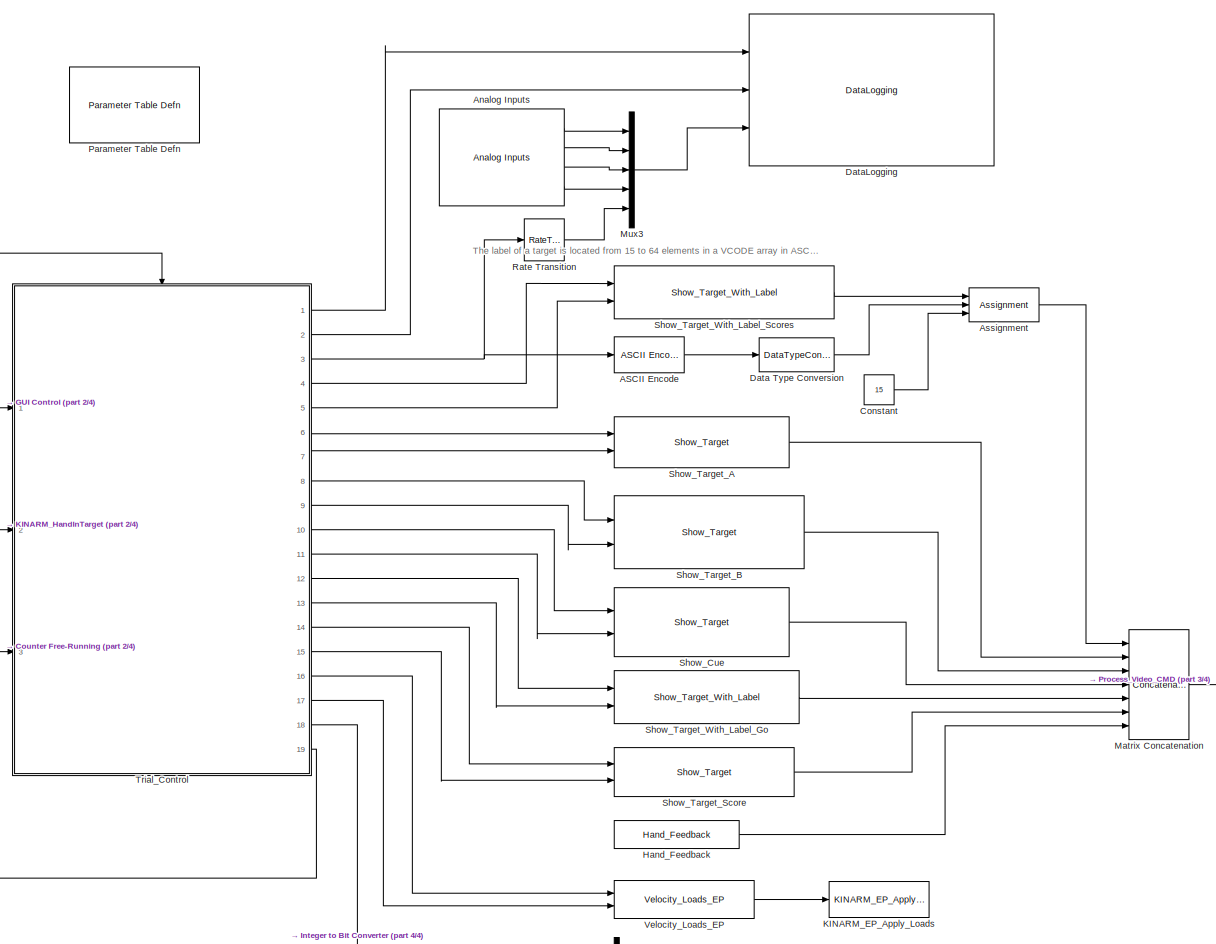
[diagram: root canvas - part 1/4, center side, full height]
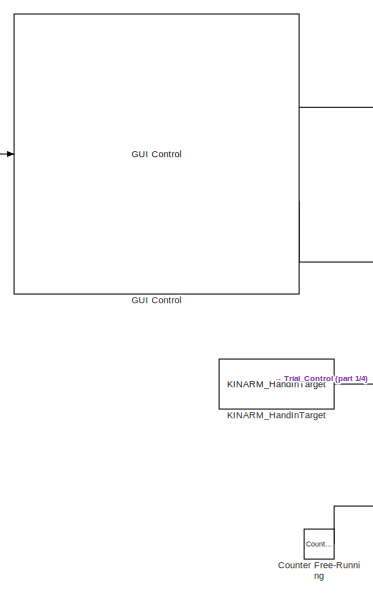
[diagram: root canvas - part 2/4, middle left region]
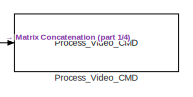
[diagram: root canvas - part 3/4, middle right region]
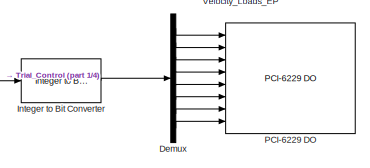
[diagram: root canvas - part 4/4, bottom center region]
MODEL slx_f0d049e67e79
KIND model
CONFIG AbsTol = auto
CONFIG FixedStep = BKIN_STEP_TIME
CONFIG MaxStep = auto
CONFIG MinStep = auto
CONFIG RelTol = 1e-3
CONFIG SampleTimeConstraint = Unconstrained
CONFIG Solver = ode4
CONFIG SolverMode = MultiTasking
CONFIG SolverName = ode4
CONFIG StartFcn =  warndlg('Dexterit-E models cannot run under simulation. Please compile your model and run it from within Dexterit-E.');set_param(bdroot,'SimulationCommand','stop')
CONFIG StartTime = 0.0
CONFIG StopTime = inf
WORKSPACE source: MAT-file member
WORKSPACE col_x = 1
BLOCK [Reference] ASCII Encode   REF=xpcseriallib/ASCII Encode 
  Ports = [1, 1]
  SourceBlock = xpcseriallib/ASCII Encode
  SourceType = ASCII Encode
  format = %d
  maxlength = 48
  nvars = 1
  vartypes = { 'double' }
BLOCK [Reference] Analog Inputs  REF=KINARM_IO/Analog Inputs
  Ports = [0, 4]
  SourceBlock = KINARM_IO/Analog Inputs
  SourceType = Analog Inputs
  channel = [1:4]
  coupling = [0 0 0 0]
  oscantime6071e = 0
  range = [10 10 10 10]
  sampletime = 0.001
  scantime6071e = 1.28e-5
  scantime6229 = 5e-6
  slot = -1
BLOCK [Assignment] Assignment
  DiagnosticForDimensions = Warning
  IndexOptions = Starting index (port)
  Ports = [3, 1]
BLOCK [Constant] Constant
  OutDataTypeStr = uint8
  Value = 15
BLOCK [Reference] Counter Free-Running  REF=simulink/Sources/Counter
Free-Running
  NumBits = 16
  Ports = [0, 1]
  SourceBlock = simulink/Sources/Counter\nFree-Running
  SourceType = Counter Free-Running
  tsamp = 0.001
BLOCK [DataTypeConversion] Data Type Conversion
  OutDataTypeStr = double
  RndMeth = Floor
  SaturateOnIntegerOverflow = off
BLOCK [Reference] DataLogging  REF=General/DataLogging
  Ports = [3]
  SourceBlock = General/DataLogging
  SourceType = DataLogging
  log_analog_inputs = on
  log_event_codes = on
BLOCK [Demux] Demux
  DisplayOption = bar
  Outputs = 8
  Ports = [1, 8]
BLOCK [Reference] GUI Control  REF=General/GUI Control
  Lcols = 4
  Ports = [1, 2]
  SourceBlock = General/GUI Control
  SourceType = GUI Control
  Target_Type = 1
  Vcols = 3
  XYcols = [1 2]
  indices_padding = [0 0 0 0;0 0 0 0]
  show_repeat_trial_flag = off
  target_type_str = Circle
  task_version = 1.0
BLOCK [Reference] Hand_Feedback  REF=KINARM_general/Hand_Feedback
  Ports = [0, 1]
  SourceBlock = KINARM_general/Hand_Feedback
  SourceType = Hand Feedback
  feedback_cntl_src = none
BLOCK [Reference] Integer to Bit Converter  REF=commutil2/Integer to Bit
Converter
  Ports = [1, 1]
  SourceBlock = commutil2/Integer to Bit\nConverter
  SourceType = Integer to Bit Converter
  bitOrder = LSB first
  nbits = 8
  outDtype = Inherit via internal rule
  signedInputValues = Unsigned
BLOCK [Reference] KINARM_EP_Apply_Loads  REF=KINARM_EP_loads/KINARM_EP_Apply_Loads
  Ports = [1]
  SourceBlock = KINARM_EP_loads/KINARM_EP_Apply_Loads
  SourceType = KINARM_EP_Apply_Loads
  down_duration = 1500
  max_force = 60
  up_duration = 1500
BLOCK [Reference] KINARM_HandInTarget  REF=KINARM_general/KINARM_HandInTarget
  Ports = [0, 1]
  SourceBlock = KINARM_general/KINARM_HandInTarget
  SourceType = KINARM_HandInTarget
  attribcol1 = [3 4 5]
  attribcol2 = [4 0 0]
  attribcol3 = [5 0 0]
  attribcol4 = [6 0 0]
  attribcol5 = [0 0 0]
  num_states = 1
  target_type = Ellipse
  use_dominant_hand = on
BLOCK [Concatenate] Matrix Concatenation
  Mode = Multidimensional array
  NumInputs = 7
  Ports = [7, 1]
BLOCK [Mux] Mux3
  DisplayOption = bar
  Inputs = 5
  Ports = [5, 1]
BLOCK [Reference] PCI-6229 DO  REF=xpcnilib/Digital
Output/M Series/PCI-6229 DO
  Ports = [8]
  SourceBlock = xpcnilib/Digital\nOutput/M Series/PCI-6229 DO
  SourceType = donipci6229
  channel = [9,10,11,12,13,14,15,16]
  initValue = [0]
  reset = [1]
  sampletime = 0.00025
  slot = -1
BLOCK [Reference] Parameter Table Defn  REF=General/Parameter Table Defn
  Ports = []
  ShowInLibBrowser = 0
  SourceBlock = General/Parameter Table Defn
  UserDataPersistent = on
BLOCK [Reference] Process_Video_CMD  REF=Video/Process_Video_CMD
  Ports = [1]
  SourceBlock = Video/Process_Video_CMD
  SourceType = Process_Video_CMD
BLOCK [RateTransition] Rate Transition
BLOCK [Reference] Show_Cue  REF=Video/Show_Target
  Ports = [2, 1]
  SourceBlock = Video/Show_Target
  SourceType = Show_Target
  attribcol1 = [8 0 0 3 3 5]
  attribcol2 = [9 0 0 3 3 5]
  attribcol3 = [10 0 0 3 3 5]
  attribcol4 = [11 0 0 3 3 5]
  attribcol5 = [ 0 0 0 0 0 0]
  num_col = 6
  num_states = 4
  opacity = 100
  source = dialog
  stateindices_padding = [0 0 0 0 0;0 0 0 0 0;0 0 0 0 0;0 0 0 0 0;0 0 0 0 0]
  target_display = Both subject and operator displays
  target_type = Ellipse
BLOCK [Reference] Show_Target_A  REF=Video/Show_Target
  Ports = [2, 1]
  SourceBlock = Video/Show_Target
  SourceType = Show_Target
  attribcol1 = [6 0 0 3]
  attribcol2 = [7 0 0 3]
  attribcol3 = [7 0 0 3]
  attribcol4 = [0 0 0 0]
  attribcol5 = [0 0 24 0]
  num_col = 4
  num_states = 2
  opacity = 100
  source = dialog
  stateindices_padding = [0 0 0 0 0 0 0;0 0 0 0 0 0 0;0 0 0 0 0 0 0;0 0 0 0 0 0 0;0 0 0 0 0 0 0]
  target_display = Both subject and operator displays
  target_type = Circle
BLOCK [Reference] Show_Target_B  REF=Video/Show_Target
  Ports = [2, 1]
  SourceBlock = Video/Show_Target
  SourceType = Show_Target
  attribcol1 = [6 0 0 3 4 5]
  attribcol2 = [7 0 0 3 4 5]
  attribcol3 = [0 6 -1 3 4 5]
  attribcol4 = [8 0 0 3 4 5]
  attribcol5 = [9 0 0 12 0 0]
  num_col = 6
  num_states = 4
  opacity = 100
  source = dialog
  stateindices_padding = [0 0 0 0 0;0 0 0 0 0;0 0 0 0 0;0 0 0 0 0;0 0 0 0 0]
  target_display = Both subject and operator displays
  target_type = Ellipse
BLOCK [Reference] Show_Target_Score  REF=Video/Show_Target
  Ports = [2, 1]
  SourceBlock = Video/Show_Target
  SourceType = Show_Target
  attribcol1 = [6 0 0 3]
  attribcol2 = [7 0 0 3]
  attribcol3 = [0 0 0 0]
  attribcol4 = [0 0 0 0]
  attribcol5 = [0 0 24 0]
  num_col = 4
  num_states = 2
  opacity = 100
  source = dialog
  stateindices_padding = [0 0 0 0 0 0 0;0 0 0 0 0 0 0;0 0 0 0 0 0 0;0 0 0 0 0 0 0;0 0 0 0 0 0 0]
  target_display = Both subject and operator displays
  target_type = Circle
BLOCK [Reference] Show_Target_With_Label_Go  REF=Video/Show_Target_With_Label
  Ports = [2, 1]
  SourceBlock = Video/Show_Target_With_Label
  SourceType = Show_Target_With_Label
  attribcol1 = [0 0 0 0 12 7 3]
  attribcol2 = [0 0 0 0 13 7 3]
  attribcol3 = [0 0 0 0 0 0 0]
  attribcol4 = [0 0 0 0 0 0 0]
  attribcol5 = [0 0 24 0 0 0 0]
  num_states = 1
  opacity = 100
  source = dialog
  stateindices_padding = [0 0 0 0;0 0 0 0;0 0 0 0;0 0 0 0;0 0 0 0]
  target_display = Both subject and operator displays
  target_type = Circle
BLOCK [Reference] Show_Target_With_Label_Scores  REF=Video/Show_Target_With_Label
  Ports = [2, 1]
  SourceBlock = Video/Show_Target_With_Label
  SourceType = Show_Target_With_Label
  attribcol1 = [0 0 0 0 0 6 3]
  attribcol2 = [0 0 0 0 0 7 3]
  attribcol3 = [0 0 0 0 0 0 0]
  attribcol4 = [0 0 0 0 0 0 0]
  attribcol5 = [0 0 24 0 0 0 0]
  num_states = 2
  opacity = 100
  source = dialog
  stateindices_padding = [0 0 0 0;0 0 0 0;0 0 0 0;0 0 0 0;0 0 0 0]
  target_display = Both subject and operator displays
  target_type = Circle
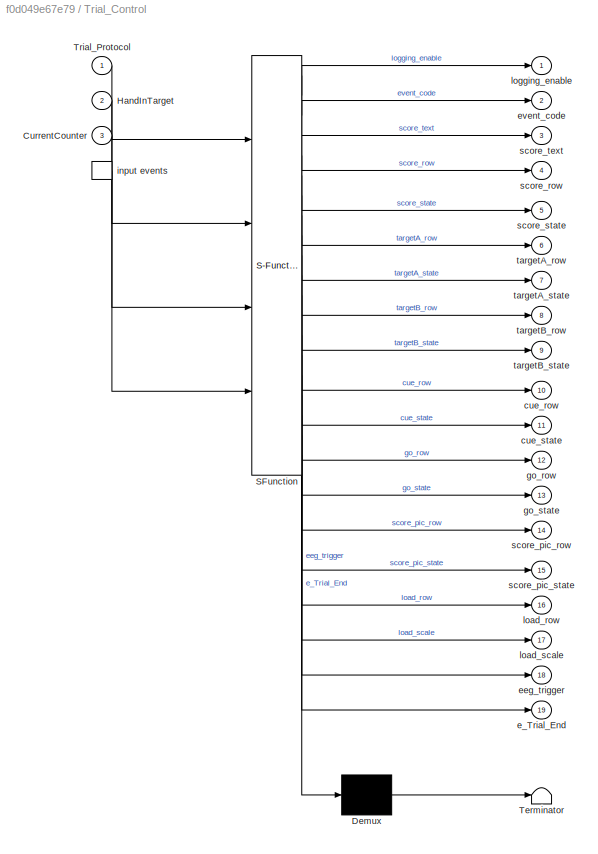
BLOCK [SubSystem] Trial_Control
  ErrorFcn = Stateflow.Translate.translate
  PermitHierarchicalResolution = ExplicitOnly
  Ports = [3, 19, 0, 1]
  RequestExecContextInheritance = off
  SFBlockType = Chart
  TreatAsAtomicUnit = on
BLOCK [Demux] Trial_Control/ Demux 
  Outputs = 1
  Ports = [1, 1]
BLOCK [S-Function] Trial_Control/ SFunction 
  EnableBusSupport = on
  FunctionName = sf_sfun
  PortCounts = [4 20]
  Ports = [4, 20]
  Tag = Stateflow S-Function reachout_sample_modified_yen 1
BLOCK [Terminator] Trial_Control/ Terminator 
BLOCK [TriggerPort] Trial_Control/ input events 
  Ports = [0, 1]
  ShowOutputPort = on
  TriggerType = either
BLOCK [Inport] Trial_Control/CurrentCounter
  IconDisplay = Port number
  Port = 3
BLOCK [Inport] Trial_Control/HandInTarget
  IconDisplay = Port number
  Port = 2
BLOCK [Inport] Trial_Control/Trial_Protocol
  IconDisplay = Port number
BLOCK [Outport] Trial_Control/cue_row
  IconDisplay = Port number
  Port = 10
BLOCK [Outport] Trial_Control/cue_state
  IconDisplay = Port number
  Port = 11
BLOCK [Outport] Trial_Control/e_Trial_End
  IconDisplay = Port number
  Port = 19
BLOCK [Outport] Trial_Control/eeg_trigger
  IconDisplay = Port number
  Port = 18
BLOCK [Outport] Trial_Control/event_code
  IconDisplay = Port number
  Port = 2
BLOCK [Outport] Trial_Control/go_row
  IconDisplay = Port number
  Port = 12
BLOCK [Outport] Trial_Control/go_state
  IconDisplay = Port number
  Port = 13
BLOCK [Outport] Trial_Control/load_row
  IconDisplay = Port number
  Port = 16
BLOCK [Outport] Trial_Control/load_scale
  IconDisplay = Port number
  Port = 17
BLOCK [Outport] Trial_Control/logging_enable
  IconDisplay = Port number
BLOCK [Outport] Trial_Control/score_pic_row
  IconDisplay = Port number
  Port = 14
BLOCK [Outport] Trial_Control/score_pic_state
  IconDisplay = Port number
  Port = 15
BLOCK [Outport] Trial_Control/score_row
  IconDisplay = Port number
  Port = 4
BLOCK [Outport] Trial_Control/score_state
  IconDisplay = Port number
  Port = 5
BLOCK [Outport] Trial_Control/score_text
  IconDisplay = Port number
  Port = 3
BLOCK [Outport] Trial_Control/targetA_row
  IconDisplay = Port number
  Port = 6
BLOCK [Outport] Trial_Control/targetA_state
  IconDisplay = Port number
  Port = 7
BLOCK [Outport] Trial_Control/targetB_row
  IconDisplay = Port number
  Port = 8
BLOCK [Outport] Trial_Control/targetB_state
  IconDisplay = Port number
  Port = 9
BLOCK [Reference] Velocity_Loads_EP  REF=KINARM_EP_loads/Velocity_Loads_EP
  Ports = [2, 1]
  SourceBlock = KINARM_EP_loads/Velocity_Loads_EP
  SourceType = Velocity_Loads_EP
  loadcol = [1 2 3 4]
  scaling = 1
  source = port
  stability = on
  use_dom_hand = on
ANNOTATION (root): The label of a target is located from 15 to 64 elements in a VCODE array in ASCII format.
LINE ASCII Encode :1 -> Data Type Conversion:1
LINE Analog Inputs:1 -> Mux3:1
LINE Analog Inputs:2 -> Mux3:2
LINE Analog Inputs:3 -> Mux3:3
LINE Analog Inputs:4 -> Mux3:4
LINE Assignment:1 -> Matrix Concatenation:1
LINE Constant:1 -> Assignment:3
LINE Counter Free-Running:1 -> Trial_Control:3
LINE Data Type Conversion:1 -> Assignment:2
LINE Demux:1 -> PCI-6229 DO:1
LINE Demux:2 -> PCI-6229 DO:2
LINE Demux:3 -> PCI-6229 DO:3
LINE Demux:4 -> PCI-6229 DO:4
LINE Demux:5 -> PCI-6229 DO:5
LINE Demux:6 -> PCI-6229 DO:6
LINE Demux:7 -> PCI-6229 DO:7
LINE Demux:8 -> PCI-6229 DO:8
LINE GUI Control:1 -> Trial_Control:trigger
LINE GUI Control:2 -> Trial_Control:1
LINE Hand_Feedback:1 -> Matrix Concatenation:7
LINE Integer to Bit Converter:1 -> Demux:1
LINE KINARM_HandInTarget:1 -> Trial_Control:2
LINE Matrix Concatenation:1 -> Process_Video_CMD:1
LINE Mux3:1 -> DataLogging:3
LINE Rate Transition:1 -> Mux3:5
LINE Show_Cue:1 -> Matrix Concatenation:4
LINE Show_Target_A:1 -> Matrix Concatenation:2
LINE Show_Target_B:1 -> Matrix Concatenation:3
LINE Show_Target_Score:1 -> Matrix Concatenation:6
LINE Show_Target_With_Label_Go:1 -> Matrix Concatenation:5
LINE Show_Target_With_Label_Scores:1 -> Assignment:1
LINE Trial_Control:1 -> DataLogging:1
LINE Trial_Control:10 -> Show_Cue:1
LINE Trial_Control:11 -> Show_Cue:2
LINE Trial_Control:12 -> Show_Target_With_Label_Go:1
LINE Trial_Control:13 -> Show_Target_With_Label_Go:2
LINE Trial_Control:14 -> Show_Target_Score:1
LINE Trial_Control:15 -> Show_Target_Score:2
LINE Trial_Control:16 -> Velocity_Loads_EP:1
LINE Trial_Control:17 -> Velocity_Loads_EP:2
LINE Trial_Control:18 -> Integer to Bit Converter:1
LINE Trial_Control:19 -> GUI Control:1
LINE Trial_Control:2 -> DataLogging:2
NET Trial_Control:3 -> ASCII Encode :1, Rate Transition:1
LINE Trial_Control:4 -> Show_Target_With_Label_Scores:1
LINE Trial_Control:5 -> Show_Target_With_Label_Scores:2
LINE Trial_Control:6 -> Show_Target_A:1
LINE Trial_Control:7 -> Show_Target_A:2
LINE Trial_Control:8 -> Show_Target_B:1
LINE Trial_Control:9 -> Show_Target_B:2
LINE Velocity_Loads_EP:1 -> KINARM_EP_Apply_Loads:1
note: NET lines group one-source signal fan-out (src -> all destinations, sorted); 1:1 wires keep LINE
CHART Trial_Control states=17 transitions=67
  STATE_LABEL 'Initialize/\n// Both the targets and data logging are initially off.\ntargetA_state = 0;\ncue_state = 0;\ngo_state = 0;\ntargetB_state = 0;\nlogging_enable = 0;\nperturb = 0;\nload_scale = 0;\nscore_state = 0;\nscore_text = 1000;\nscore_pic_state = 0;'
  STATE_LABEL 'MainTrial'
  STATE_LABEL 'ShowFirstTarget/\n// Turn on first target, set loading conditions, enable data logging, and wait for a specified time or until the hand is in the target.\ntargetA_row = Trial_Protocol[START_TARGET];\ncue_row = Trial_Protocol[CUE_TARGET];\ngo_row = Trial_Protocol[GO_TEXT];\n\nperturb_prob = Trial_Protocol[PERTUB_PROB]; // Get perturbation probability\nscore_pic_row = Trial_Protocol[SCORE_PIC];\nscore_row =...<+134ch>'
  STATE_LABEL "StayAtFirstTarget/\n// Log an event that target was reached, begin data logging, change the first target's state, and then wait for a specified time.\n// The wait time may have both a fixed and a random component. The hand must stay in the target for the full wait time.\nlogging_enable = 1;\nevent_code = E_STAY_CENTER;\n\ntargetA_state = 2;\ntickCount = Trial_Protocol[DELAY_READY_FIXED] + Trial_Protocol[...<+224ch>"
  STATE_LABEL 'ShowTargetWithCueWhileStayAtTargetA/\n// Turn on second target with cue and log an event indicating this has occurred. Then wait until a specified time has elapsed.\nevent_code = E_CUE_ON;\ntickCount = Trial_Protocol[DELAY_CUE];\n\nsize_prob = Trial_Protocol[END_SIZE_PROB];\nsize_random = 100 * rand() / RAND_MAX; // Generate a random number for determining target size\n\n\n'
  STATE_LABEL 'ShowTargetLocationWhileStayAtTargetA/\n// Show target B location after cue\nevent_code = E_LOCATION_ON;\ntickCount = Trial_Protocol[DELAY_GO];\n\ncue_state = 0;\ntargetB_state = 3;\n\nload_prob = Trial_Protocol[LOAD_LEFT_PROB];\nload_random = 100 * rand() / RAND_MAX; // Generate a random number for determining perturbation direction\n'
  STATE_LABEL 'ShowSecondTarget/\n// Turn on second target and log an event indicating this has occurred. Then wait until the hand is the target or until a specified time has elapsed.\nevent_code = E_TARGET_GO;\n\n// Put GO cue here +++++++++++++++++++++++++++++++++++++++++++++++++//\ngo_state = 1;\n\ntargetB_state = 1;\ntickCount = Trial_Protocol[MAX_REACT_TIME];\n'
  STATE_LABEL 'OnceMoveOutFirstTarget/\n// Once the hand moved out of the first target\nen: tickMoveOnset = CurrentCounter;\n\nevent_code = E_MOVE_OUT_SP;\ngo_state = 0;\ntargetA_state = 0;\n\ntickCount = Trial_Protocol[MAX_REACH_TIME];\nex: tickElapsed = temporalCount(msec);\n\n'
  STATE_LABEL 'DelayPerturb/\n// delay a period before applying pertub\ntickCount_perturb = Trial_Protocol[DELAY_PERTURB];\ntickCount = tickCount - tickElapsed;\ndu: tickElapsed = temporalCount(msec);'
  STATE_LABEL 'Perturb/\nevent_code = E_PERTURB_ON;\nload_scale = 1;\ntickCount = tickCount - tickElapsed;'
  STATE_LABEL 'ReachSecondTarget/\n// Log an event that the second target was reached\nen: tickMove = CurrentCounter - tickMoveOnset;\nevent_code = E_REACH_TARGET;\ntickElapsed = 0;\n'
  STATE_LABEL 'StayAtSecondTarget/\n// Log an event that specific time to stay at the second target was reached.\nevent_code = E_STAY_TARGET;\ntickCount = Trial_Protocol[DELAY_TARGET];\ntickCount = tickCount - tickElapsed;\n\n'
  STATE_LABEL 'NotStayAtTarget/\nevent_code = E_NOT_HOLD;\ntargetB_state = 1;\ntickCount = Trial_Protocol[MAX_RECOVER];\nex: tickElapsed = temporalCount(msec);'
  STATE_LABEL 'Score/\n// Get point\nevent_code = E_SCORE;\nscore_text = score_text + 1;\ntargetB_state = 0; \nscore_pic_state = 2;\nscore_state = 2;'
  STATE_LABEL 'Miss/\n// Fail\nevent_code = E_MISS;\ntargetB_state = 0;\nscore_pic_state = 1;\nscore_state = 1;\ngo_state = 0;'
  STATE_LABEL 'EndOfTrial/\n// Set the post-trial delay.\ntickCount = Trial_Protocol[DELAY_POST_TRIAL];\n\n\n\n'
  STATE_LABEL '[HandInTarget[targetA_row] == 1]'
  STATE_LABEL '[HandInTarget[targetA_row] == 0]'
  STATE_LABEL 'after(tickCount, msec)'
  STATE_LABEL '[perturb_prob == 75]'
  STATE_LABEL '{cue_state = 3;}'
  STATE_LABEL '[perturb_prob == 50]'
  STATE_LABEL '{cue_state = 1;}'
  STATE_LABEL '{cue_state = 2;}'
  STATE_LABEL '[perturb_random >= perturb_prob]'
  STATE_LABEL '{perturb = 0;}'
  STATE_LABEL '{perturb = 1;}'
  STATE_LABEL 'after(tickCount, msec)'
  STATE_LABEL '[HandInTarget[targetA_row] == 0]'
  STATE_LABEL '[HandInTarget[targetA_row] == 0]'
  STATE_LABEL 'after(tickCount, msec)'
  STATE_LABEL '[size_random > size_prob]'
  STATE_LABEL '{targetB_row = Trial_Protocol[XS_END_TARGET];}'
  STATE_LABEL '[load_random > load_prob]'
  STATE_LABEL '{load_row = Trial_Protocol[LOAD_CW];}'
  STATE_LABEL '{load_row = Trial_Protocol[LOAD_CCW];}'
  STATE_LABEL '[HandInTarget[targetA_row] == 0]'
  STATE_LABEL 'after(tickCount, msec)'
  STATE_LABEL 'after(tickCount, msec)'
  STATE_LABEL '[perturb == 0 && HandInTarget[targetB_row] == 1]'
